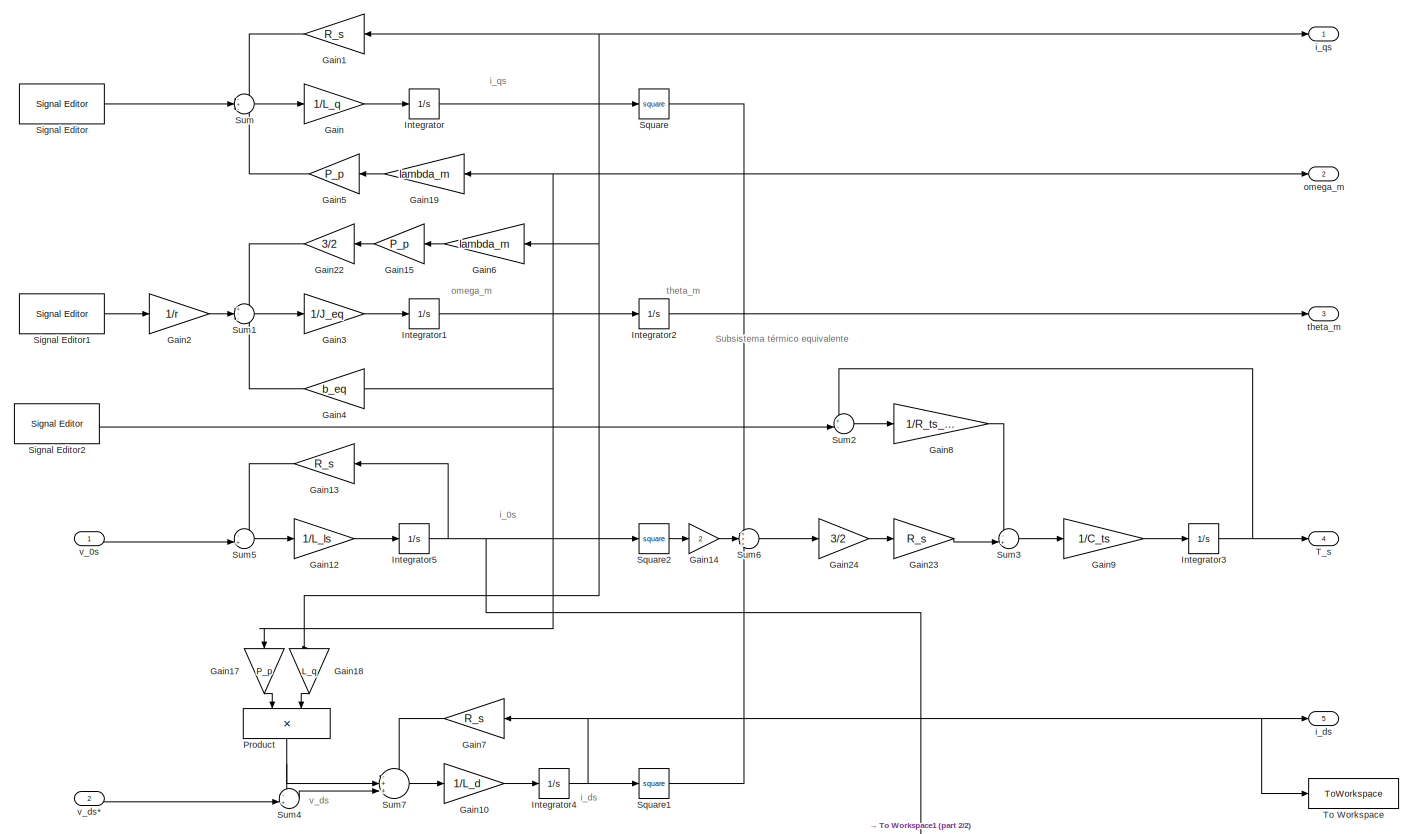
[diagram: root canvas - part 1/2, most of the canvas]
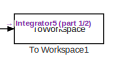
[diagram: root canvas - part 2/2, bottom right region]
MODEL slx_23dc0dde3283
KIND model
CONFIG AbsTol = auto
CONFIG EnableMultiTasking = off
CONFIG FixedStep = auto
CONFIG MaxStep = 1e-4
CONFIG MinStep = auto
CONFIG RelTol = 1e-3
CONFIG SampleTimeConstraint = Unconstrained
CONFIG SolverName = VariableStepAuto
CONFIG StartTime = 0.0
CONFIG StopTime = 1
BLOCK [Gain] Gain
  Gain = 1/L_q
BLOCK [Gain] Gain1
  Gain = R_s
BLOCK [Gain] Gain10
  Gain = 1/L_d
BLOCK [Gain] Gain12
  Gain = 1/L_ls
BLOCK [Gain] Gain13
  Gain = R_s
BLOCK [Gain] Gain14
  Gain = 2
BLOCK [Gain] Gain15
  Gain = P_p
BLOCK [Gain] Gain17
  Gain = P_p
  NameLocation = left
BLOCK [Gain] Gain18
  Gain = L_q
  NameLocation = left
BLOCK [Gain] Gain19
  Gain = lambda_m
BLOCK [Gain] Gain2
  Gain = 1/r
BLOCK [Gain] Gain22
  Gain = 3/2
BLOCK [Gain] Gain23
  Gain = R_s
BLOCK [Gain] Gain24
  Gain = 3/2
BLOCK [Gain] Gain3
  Gain = 1/J_eq
BLOCK [Gain] Gain4
  Gain = b_eq
BLOCK [Gain] Gain5
  Gain = P_p
BLOCK [Gain] Gain6
  Gain = lambda_m
BLOCK [Gain] Gain7
  Gain = R_s
BLOCK [Gain] Gain8
  Gain = 1/R_ts_amb
BLOCK [Gain] Gain9
  Gain = 1/C_ts
BLOCK [Integrator] Integrator
BLOCK [Integrator] Integrator1
BLOCK [Integrator] Integrator2
BLOCK [Integrator] Integrator3
BLOCK [Integrator] Integrator4
BLOCK [Integrator] Integrator5
BLOCK [Product] Product
  NameLocation = right
BLOCK [Reference] Signal Editor  REF=SignalEditorBlockLib/Signal Editor
  LibrarySourceBlock = simulink/Sources/Signal Editor
  SourceBlock = SignalEditorBlockLib/Signal Editor
  SourceType = SignalEditor
  UserDataPersistent = on
BLOCK [Reference] Signal Editor1  REF=SignalEditorBlockLib/Signal Editor
  LibrarySourceBlock = simulink/Sources/Signal Editor
  SourceBlock = SignalEditorBlockLib/Signal Editor
  SourceType = SignalEditor
  UserDataPersistent = on
BLOCK [Reference] Signal Editor2  REF=SignalEditorBlockLib/Signal Editor
  LibrarySourceBlock = simulink/Sources/Signal Editor
  SourceBlock = SignalEditorBlockLib/Signal Editor
  SourceType = SignalEditor
  UserDataPersistent = on
BLOCK [Math] Square
  Operator = square
BLOCK [Math] Square1
  Operator = square
BLOCK [Math] Square2
  Operator = square
BLOCK [Sum] Sum
  Inputs = -+-
BLOCK [Sum] Sum1
  Inputs = +--
BLOCK [Sum] Sum2
  Inputs = +-|
BLOCK [Sum] Sum3
  Inputs = -+|
BLOCK [Sum] Sum4
  Inputs = -+|
BLOCK [Sum] Sum5
  Inputs = -+|
BLOCK [Sum] Sum6
  Inputs = +++
BLOCK [Sum] Sum7
  Inputs = -++|
BLOCK [Outport] T_s
  Port = 4
BLOCK [ToWorkspace] To Workspace
  FixptAsFi = on
  MaxDataPoints = inf
  SampleTime = -1
  SaveFormat = Timeseries
  VariableName = ids_lti
BLOCK [ToWorkspace] To Workspace1
  FixptAsFi = on
  MaxDataPoints = inf
  SampleTime = -1
  SaveFormat = Timeseries
  VariableName = corriente_0
BLOCK [Outport] i_ds
  Port = 5
BLOCK [Outport] i_qs
BLOCK [Outport] omega_m
  Port = 2
BLOCK [Outport] theta_m
  Port = 3
BLOCK [Inport] v_0s
BLOCK [Inport] v_ds*
  Port = 2
ANNOTATION (root): Subsistema térmico equivalente
ANNOTATION (root): i_0s
ANNOTATION (root): i_ds
ANNOTATION (root): i_qs
ANNOTATION (root): omega_m
ANNOTATION (root): theta_m
ANNOTATION (root): v_ds
LINE Gain10:1 -> Integrator4:1
LINE Gain12:1 -> Integrator5:1
LINE Gain13:1 -> Sum5:1
LINE Gain14:1 -> Sum6:2
LINE Gain15:1 -> Gain22:1
LINE Gain17:1 -> Product:1
LINE Gain18:1 -> Product:2
LINE Gain19:1 -> Gain5:1
LINE Gain1:1 -> Sum:1
LINE Gain22:1 -> Sum1:1
LINE Gain23:1 -> Sum3:2
LINE Gain24:1 -> Gain23:1
LINE Gain2:1 -> Sum1:2
LINE Gain3:1 -> Integrator1:1
LINE Gain4:1 -> Sum1:3
LINE Gain5:1 -> Sum:3
LINE Gain6:1 -> Gain15:1
LINE Gain7:1 -> Sum7:1
LINE Gain8:1 -> Sum3:1
LINE Gain9:1 -> Integrator3:1
LINE Gain:1 -> Integrator:1
NET Integrator1:1 -> Gain17:1, Gain19:1, Gain4:1, Integrator2:1, omega_m:1
LINE Integrator2:1 -> theta_m:1
NET Integrator3:1 -> Sum2:1, T_s:1
NET Integrator4:1 -> Gain7:1, Square1:1, To Workspace:1, i_ds:1
NET Integrator5:1 -> Gain13:1, Square2:1, To Workspace1:1
NET Integrator:1 -> Gain18:1, Gain1:1, Gain6:1, Square:1, i_qs:1
NET Product:1 -> Sum4:1, Sum7:2
LINE Signal Editor1:1 -> Gain2:1
LINE Signal Editor2:1 -> Sum2:2
LINE Signal Editor:1 -> Sum:2
LINE Square1:1 -> Sum6:3
LINE Square2:1 -> Gain14:1
LINE Square:1 -> Sum6:1
LINE Sum1:1 -> Gain3:1
LINE Sum2:1 -> Gain8:1
LINE Sum3:1 -> Gain9:1
LINE Sum4:1 -> Sum7:3
LINE Sum5:1 -> Gain12:1
LINE Sum6:1 -> Gain24:1
LINE Sum7:1 -> Gain10:1
LINE Sum:1 -> Gain:1
LINE v_0s:1 -> Sum5:2
LINE v_ds*:1 -> Sum4:2
note: NET lines group one-source signal fan-out (src -> all destinations, sorted); 1:1 wires keep LINE
